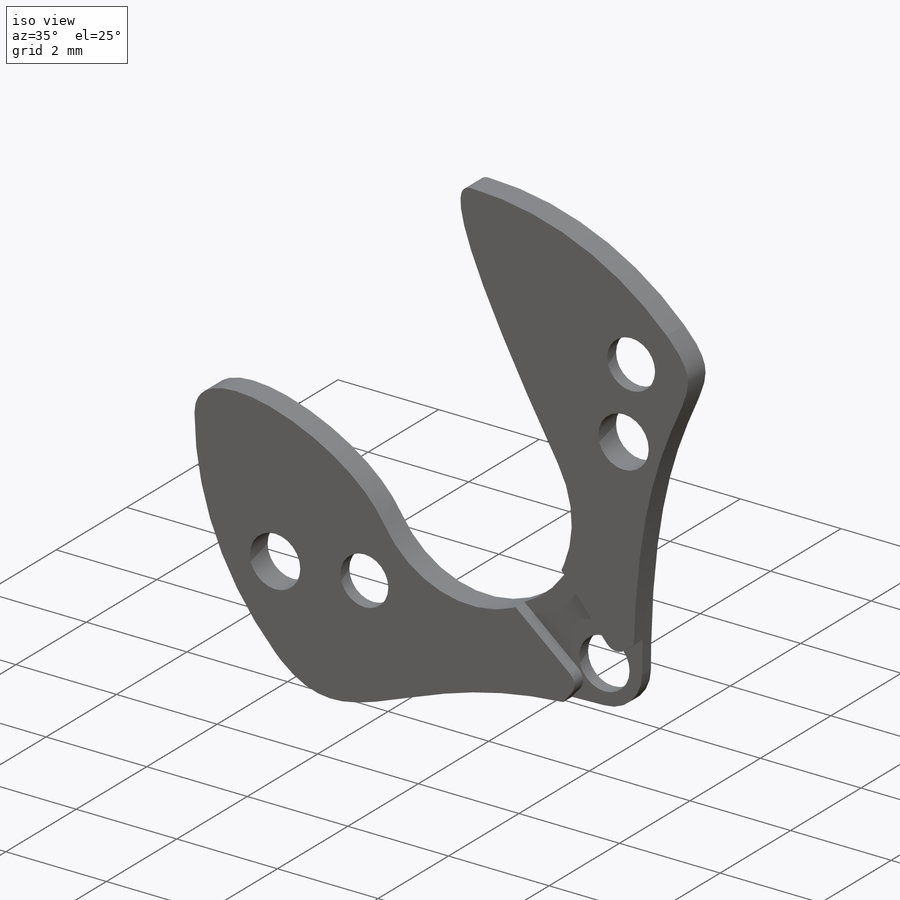
[diagram: iso view]
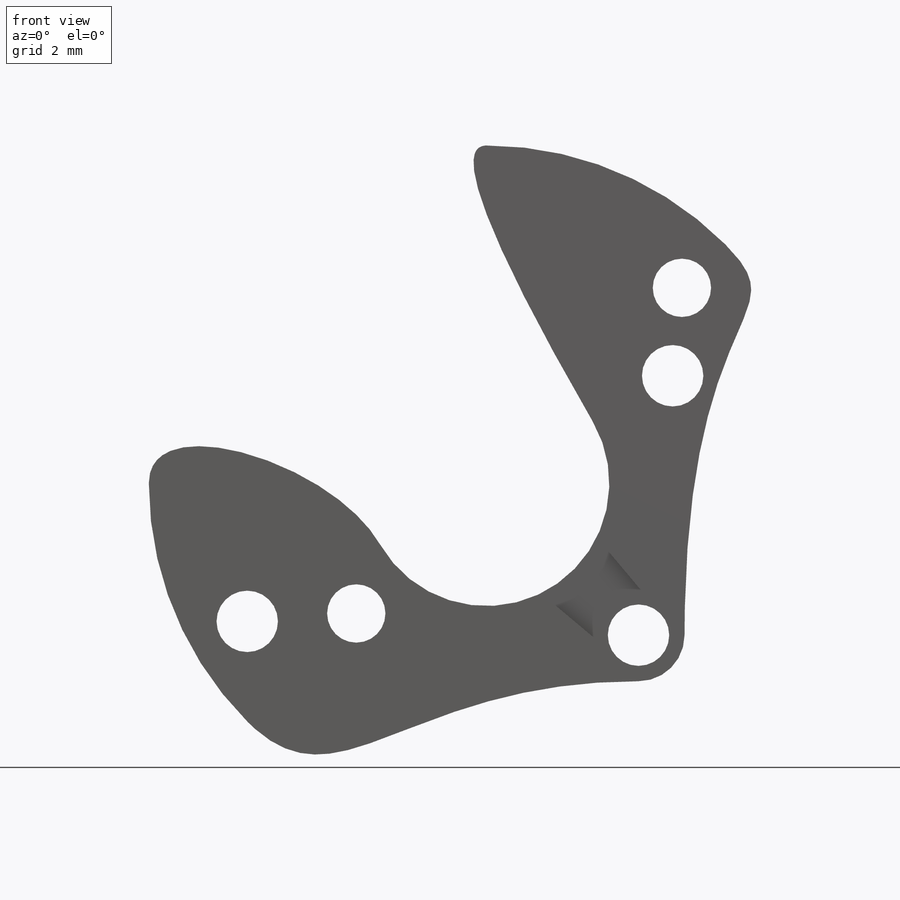
[diagram: front view]
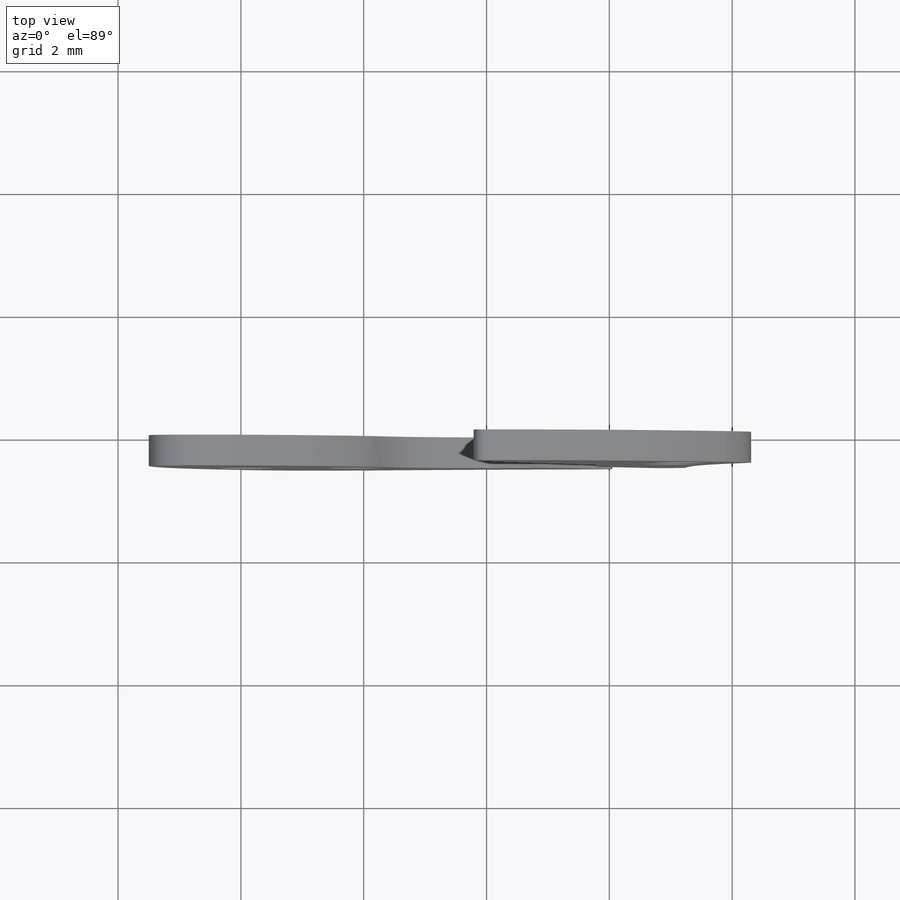
[diagram: top view]
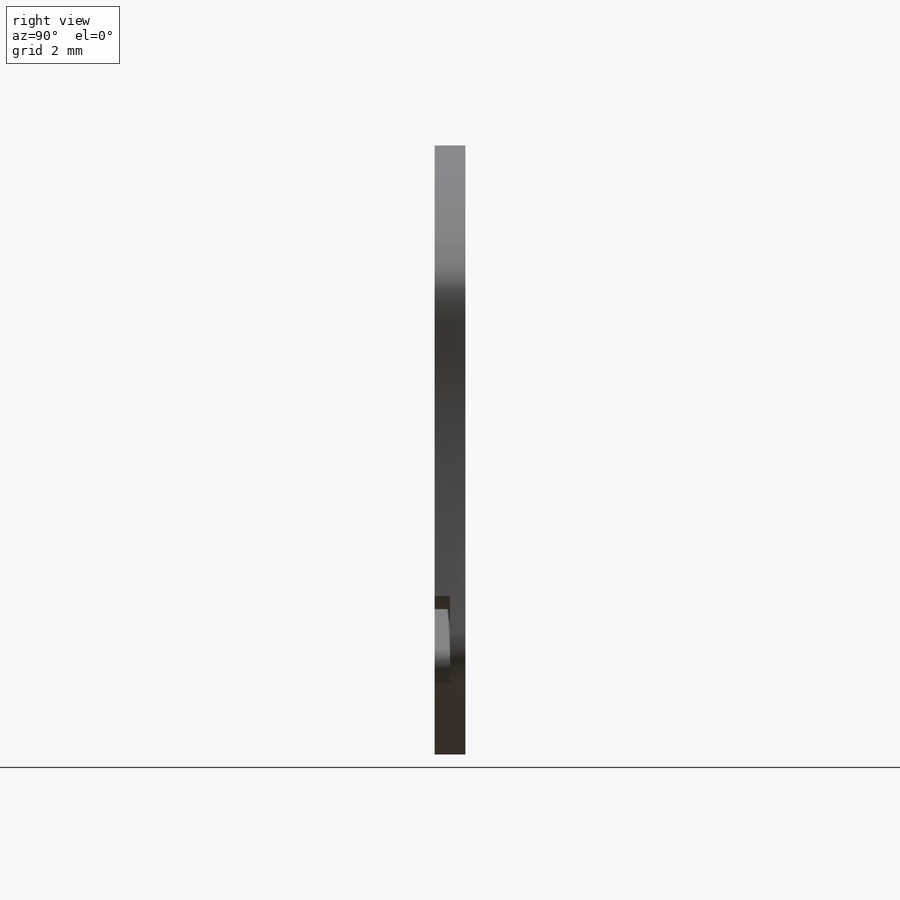
[diagram: right view]
SOLIDWORKS PART (.sldprt)
format: sldprt  version: not decoded by parser v0  size: 284,160 bytes
history: native  units: mm
features: sketch x5, plane x3, cut_extrude x2, thread x2, material x1, extrude x1, hole x1 (+8 scaffold rows collapsed)
feature tree (23):
  scaffold x8  (default folders/planes/origin — collapsed)
  material  "Material <sin especificar>"
  plane  "Alzado"
  plane  "Planta"
  plane  "Vista lateral"
  sketch  "Croquis1"  dims[c1.D1=11.0mm c1.D2=5.0mm c1.D4=7.0mm c2.D1=11.0mm c2.D2=4.0mm c2.D5=1.0mm c2.D6=3.0mm c2.D8=1.0mm c2.D9=1.0mm c2.D11=1.5mm c2.D7=1.0mm c3.D8=1.0mm c3.D3=~2.967901mm c4.D3=45.0deg c4.D4=3.5mm c4.D7=~3.368513mm c5.D7=60.0deg c6.D7=~6.202822mm c7.D7=150.0deg c7.D3=~6.267732mm c8.D3=30.0deg c8.D6=3.5mm c9.D6=45.0deg c9.D7=8.5mm c9.D10=4.25mm c9.D12=~3.005204mm c10.D7=4.25mm c10.D9=11.0mm c11.D9=20.0deg c11.D10=4.5mm c11.D12=3.5mm c12.D9=5.5mm c13.D9=45.0deg]
  extrude  "Saliente-Extruir1"  Depth=0.5mm
  sketch  "Croquis3"  dims[c1.D1=1.5mm c1.D2=1.5mm c1.D3=~2.331081mm c2.D3=30.0deg c2.D4=9.0mm c3.D3=6.5mm c3.D5=6.5mm c4.D3=8.0mm c5.D3=60.0deg c5.D5=~2.474874mm c6.D5=75.0deg c6.D3=~2.474874mm c7.D3=90.0deg c7.D5=4.5mm c7.D4=3.0mm]
  cut_extrude  "Cortar-Extruir1"  Depth=0.25mm
  sketch  "Croquis4"  dims[c1.D5=0.25mm c1.D1=3.5mm c2.D1=5.0deg c2.D2=~3.444394mm c3.D2=5.0deg c3.D3=0.5mm c3.D4=0.5mm]
  cut_extrude  "Cortar-Extruir2"  Depth=0.25mm
  hole  "Taladro roscado M1.2x0.251"  Depth=0.25005mm  [1 undecoded]
  sketch  "Croquis6"
  sketch  "Croquis5"  dims[hole-wizard template sketch: 59 standard entries collapsed; hole parameters kept: c18.Diámetro de perforador para roscar hasta el siguiente=0.95mm c18.Profundidad de perforador para roscar hasta el siguiente=~0.25005mm]
  thread  "Rosca de taladro1"  Diameter=1.2mm  [1 undecoded]
  thread  "Rosca de taladro2"  Diameter=1.2mm  [1 undecoded]
decode coverage: 10 of 11 modeling features carry decoded parameters
note: ~ marks probable driven/reference dimensions
note: 3 parameter values undecoded
note: suppression state not decoded; provenance and decode notes live in map.json
